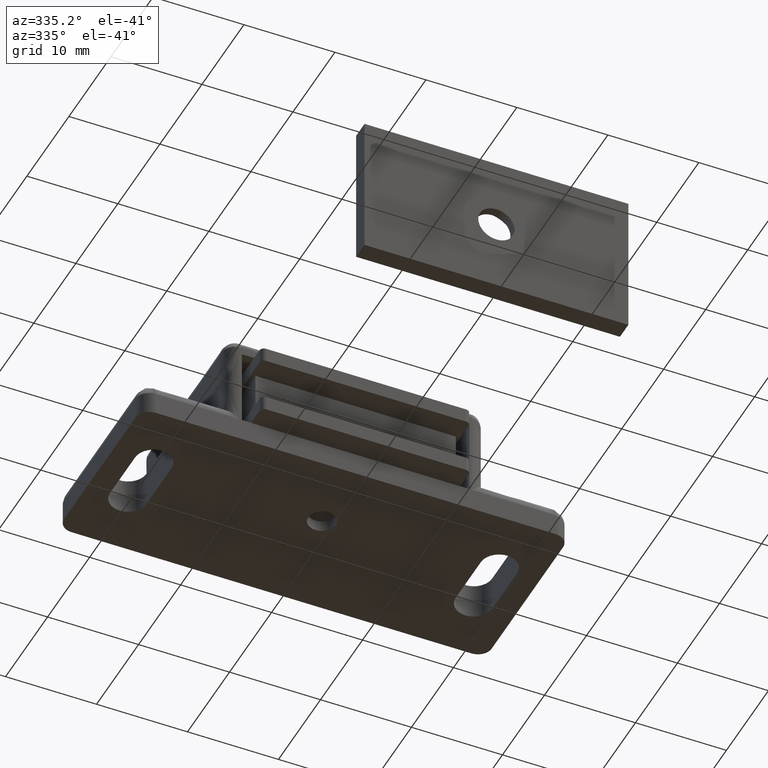
[diagram: clean part render]
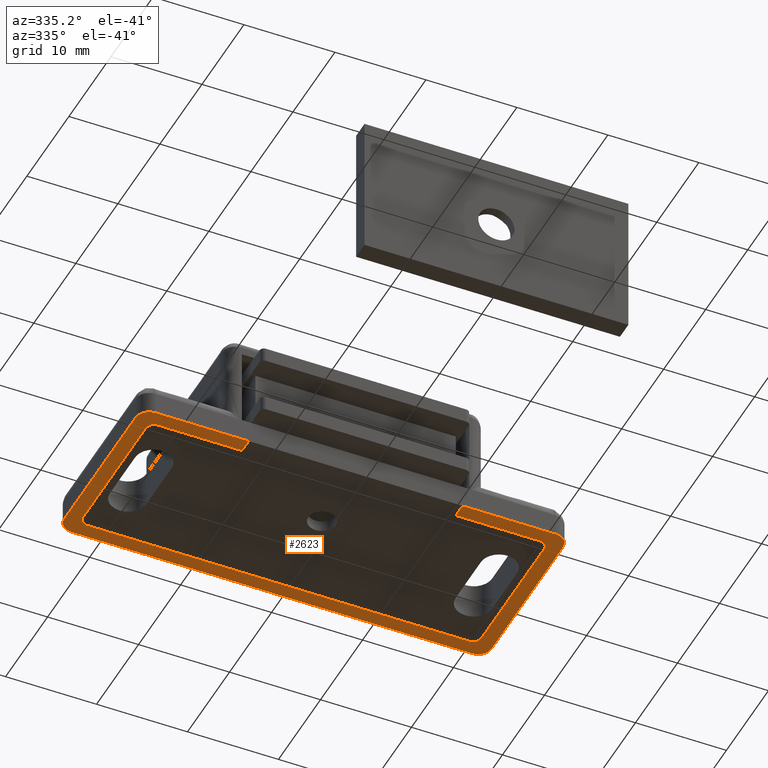
[diagram: same view with one face highlighted and labeled with its STEP entity id]
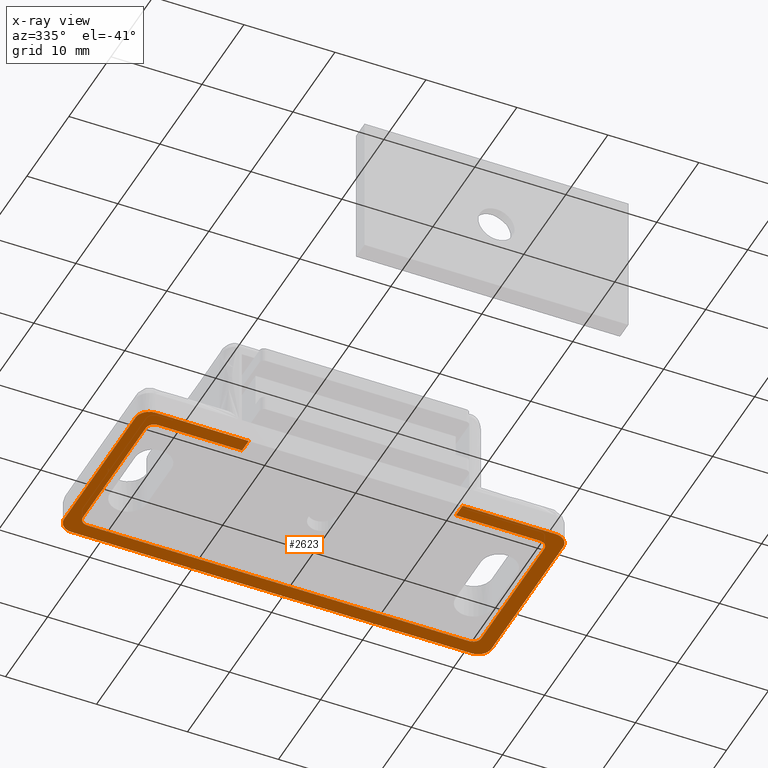
[diagram: x-ray of the same camera — body ghosted, the highlighted face saturated]
A machine part, auxiliary view. The second image highlights one B-rep face of the part: STEP entity #2623.
The next image is the same camera in x-ray: the body ghosted, the highlighted face saturated — about 0% of this face is hidden behind the body in this view.
In plain terms, the highlighted face is a freeform B-spline surface patch.
Its self-contained STEP definition (entity closure, byte-faithful):
#936=CARTESIAN_POINT('',(23.500000000000000,-1.500000000000000,0.0));
#937=VERTEX_POINT('',#936);
#943=CARTESIAN_POINT('',(22.0,0.0,0.0));
#944=VERTEX_POINT('',#943);
#945=CARTESIAN_POINT('',(22.0,0.0,0.0));
#946=CARTESIAN_POINT('',(23.500000000000004,0.0,0.0));
#947=CARTESIAN_POINT('',(23.500000000000000,-1.500000000000000,0.0));
#955=(BOUNDED_CURVE()B_SPLINE_CURVE(2,(#945,#946,#947),.UNSPECIFIED.,.F.,.U.)CURVE()GEOMETRIC_REPRESENTATION_ITEM()QUASI_UNIFORM_CURVE()RATIONAL_B_SPLINE_CURVE((1.0,0.707106781186548,1.0))REPRESENTATION_ITEM(''));
#956=EDGE_CURVE('',#944,#937,#955,.T.);
#1138=CARTESIAN_POINT('',(22.0,-20.0,0.0));
#1139=VERTEX_POINT('',#1138);
#1145=CARTESIAN_POINT('',(23.500000000000000,-18.500000000000000,0.0));
#1146=VERTEX_POINT('',#1145);
#1147=CARTESIAN_POINT('',(23.500000000000000,-18.500000000000000,0.0));
#1148=CARTESIAN_POINT('',(23.500000000000004,-19.999999999999996,0.0));
#1149=CARTESIAN_POINT('',(22.0,-20.0,0.0));
#1157=(BOUNDED_CURVE()B_SPLINE_CURVE(2,(#1147,#1148,#1149),.UNSPECIFIED.,.F.,.U.)CURVE()GEOMETRIC_REPRESENTATION_ITEM()QUASI_UNIFORM_CURVE()RATIONAL_B_SPLINE_CURVE((1.0,0.707106781186548,1.0))REPRESENTATION_ITEM(''));
#1158=EDGE_CURVE('',#1146,#1139,#1157,.T.);
#1199=CARTESIAN_POINT('',(-22.0,0.0,0.0));
#1200=VERTEX_POINT('',#1199);
#1206=CARTESIAN_POINT('',(-23.500000000000000,-1.500000000000000,0.0));
#1207=VERTEX_POINT('',#1206);
#1208=CARTESIAN_POINT('',(-23.500000000000000,-1.500000000000000,0.0));
#1209=CARTESIAN_POINT('',(-23.500000000000004,0.0,0.0));
#1210=CARTESIAN_POINT('',(-22.0,0.0,0.0));
#1218=(BOUNDED_CURVE()B_SPLINE_CURVE(2,(#1208,#1209,#1210),.UNSPECIFIED.,.F.,.U.)CURVE()GEOMETRIC_REPRESENTATION_ITEM()QUASI_UNIFORM_CURVE()RATIONAL_B_SPLINE_CURVE((1.0,0.707106781186548,1.0))REPRESENTATION_ITEM(''));
#1219=EDGE_CURVE('',#1207,#1200,#1218,.T.);
#1400=CARTESIAN_POINT('',(-22.0,-20.0,0.0));
#1401=VERTEX_POINT('',#1400);
#1402=CARTESIAN_POINT('',(-23.500000000000000,-18.500000000000000,0.0));
#1403=VERTEX_POINT('',#1402);
#1404=CARTESIAN_POINT('',(-22.0,-20.0,0.0));
#1405=CARTESIAN_POINT('',(-23.500000000000004,-19.999999999999996,0.0));
#1406=CARTESIAN_POINT('',(-23.500000000000000,-18.500000000000000,0.0));
#1414=(BOUNDED_CURVE()B_SPLINE_CURVE(2,(#1404,#1405,#1406),.UNSPECIFIED.,.F.,.U.)CURVE()GEOMETRIC_REPRESENTATION_ITEM()QUASI_UNIFORM_CURVE()RATIONAL_B_SPLINE_CURVE((1.0,0.707106781186548,1.0))REPRESENTATION_ITEM(''));
#1415=EDGE_CURVE('',#1401,#1403,#1414,.T.);
#2236=CARTESIAN_POINT('',(-11.750000000000000,-18.400001000000000,0.0));
#2237=VERTEX_POINT('',#2236);
#2238=CARTESIAN_POINT('',(-11.750000000000000,-20.0,0.0));
#2239=VERTEX_POINT('',#2238);
#2240=CARTESIAN_POINT('',(-11.750000000000000,-18.400001000000000,0.0));
#2241=CARTESIAN_POINT('',(-11.750000000000000,-20.0,0.0));
#2242=QUASI_UNIFORM_CURVE('',1,(#2240,#2241),.UNSPECIFIED.,.F.,.U.);
#2243=EDGE_CURVE('',#2237,#2239,#2242,.T.);
#2304=CARTESIAN_POINT('',(23.500000000000000,-18.500000000000000,0.0));
#2305=CARTESIAN_POINT('',(23.500000000000000,-1.500000000000000,0.0));
#2306=QUASI_UNIFORM_CURVE('',1,(#2304,#2305),.UNSPECIFIED.,.F.,.U.);
#2307=EDGE_CURVE('',#1146,#937,#2306,.T.);
#2322=CARTESIAN_POINT('',(-23.500000000000000,-1.500000000000000,0.0));
#2323=CARTESIAN_POINT('',(-23.500000000000000,-18.500000000000000,0.0));
#2324=QUASI_UNIFORM_CURVE('',1,(#2322,#2323),.UNSPECIFIED.,.F.,.U.);
#2325=EDGE_CURVE('',#1207,#1403,#2324,.T.);
#2338=CARTESIAN_POINT('',(22.0,0.0,0.0));
#2339=CARTESIAN_POINT('',(-22.0,0.0,0.0));
#2340=QUASI_UNIFORM_CURVE('',1,(#2338,#2339),.UNSPECIFIED.,.F.,.U.);
#2341=EDGE_CURVE('',#944,#1200,#2340,.T.);
#2496=CARTESIAN_POINT('',(-25.847649908904881,0.998999961236118,0.0));
#2497=CARTESIAN_POINT('',(25.847651169543120,0.998999961236118,0.0));
#2498=CARTESIAN_POINT('',(-25.847649908904881,-20.999000497677919,0.0));
#2499=CARTESIAN_POINT('',(25.847651169543120,-20.999000497677919,0.0));
#2500=B_SPLINE_SURFACE_WITH_KNOTS('',1,1,((#2496,#2498),(#2497,#2499)),.UNSPECIFIED.,.F.,.F.,.U.,(2,2),(2,2),(0.0,51.695301078447997),(0.0,21.998000458914039),.UNSPECIFIED.);
#2501=ORIENTED_EDGE('',*,*,#2341,.F.);
#2502=ORIENTED_EDGE('',*,*,#956,.T.);
#2503=ORIENTED_EDGE('',*,*,#2307,.F.);
#2504=ORIENTED_EDGE('',*,*,#1158,.T.);
#2505=CARTESIAN_POINT('',(11.750000000000000,-20.0,0.0));
#2506=VERTEX_POINT('',#2505);
#2507=CARTESIAN_POINT('',(11.750000000000000,-20.0,0.0));
#2508=CARTESIAN_POINT('',(22.0,-20.0,0.0));
#2509=QUASI_UNIFORM_CURVE('',1,(#2507,#2508),.UNSPECIFIED.,.F.,.U.);
#2510=EDGE_CURVE('',#2506,#1139,#2509,.T.);
#2511=ORIENTED_EDGE('',*,*,#2510,.F.);
#2512=CARTESIAN_POINT('',(11.750000000000000,-18.400001000000000,0.0));
#2513=VERTEX_POINT('',#2512);
#2514=CARTESIAN_POINT('',(11.750000000000000,-20.0,0.0));
#2515=CARTESIAN_POINT('',(11.750000000000000,-18.400001000000000,0.0));
#2516=QUASI_UNIFORM_CURVE('',1,(#2514,#2515),.UNSPECIFIED.,.F.,.U.);
#2517=EDGE_CURVE('',#2506,#2513,#2516,.T.);
#2518=ORIENTED_EDGE('',*,*,#2517,.T.);
#2519=CARTESIAN_POINT('',(21.0,-18.400001000000000,0.0));
#2520=VERTEX_POINT('',#2519);
#2521=CARTESIAN_POINT('',(11.750000000000000,-18.400001000000000,0.0));
#2522=CARTESIAN_POINT('',(21.0,-18.400001000000000,0.0));
#2523=QUASI_UNIFORM_CURVE('',1,(#2521,#2522),.UNSPECIFIED.,.F.,.U.);
#2524=EDGE_CURVE('',#2513,#2520,#2523,.T.);
#2525=ORIENTED_EDGE('',*,*,#2524,.T.);
#2526=CARTESIAN_POINT('',(21.899999999999999,-17.500000000000000,0.0));
#2527=VERTEX_POINT('',#2526);
#2528=CARTESIAN_POINT('',(21.899999999999999,-17.500000000000000,0.0));
#2529=CARTESIAN_POINT('',(21.900000000000002,-18.400000000000009,0.0));
#2530=CARTESIAN_POINT('',(21.0,-18.399999999999999,0.0));
#2538=(BOUNDED_CURVE()B_SPLINE_CURVE(2,(#2528,#2529,#2530),.UNSPECIFIED.,.F.,.U.)CURVE()GEOMETRIC_REPRESENTATION_ITEM()QUASI_UNIFORM_CURVE()RATIONAL_B_SPLINE_CURVE((1.0,0.707106781186547,1.0))REPRESENTATION_ITEM(''));
#2539=EDGE_CURVE('',#2527,#2520,#2538,.T.);
#2540=ORIENTED_EDGE('',*,*,#2539,.F.);
#2541=CARTESIAN_POINT('',(21.900001000000000,-2.500000000000000,0.0));
#2542=VERTEX_POINT('',#2541);
#2543=CARTESIAN_POINT('',(21.899999999999999,-17.500000000000000,0.0));
#2544=CARTESIAN_POINT('',(21.900001000000000,-2.500000000000000,0.0));
#2545=QUASI_UNIFORM_CURVE('',1,(#2543,#2544),.UNSPECIFIED.,.F.,.U.);
#2546=EDGE_CURVE('',#2527,#2542,#2545,.T.);
#2547=ORIENTED_EDGE('',*,*,#2546,.T.);
#2548=CARTESIAN_POINT('',(21.000000172787601,-1.600000000000000,0.0));
#2549=VERTEX_POINT('',#2548);
#2550=CARTESIAN_POINT('',(21.000000172787601,-1.600000000000017,0.0));
#2551=CARTESIAN_POINT('',(21.899999999999999,-1.600000172787583,0.0));
#2552=CARTESIAN_POINT('',(21.899999999999999,-2.500000000000000,0.0));
#2560=(BOUNDED_CURVE()B_SPLINE_CURVE(2,(#2550,#2551,#2552),.UNSPECIFIED.,.F.,.U.)CURVE()GEOMETRIC_REPRESENTATION_ITEM()QUASI_UNIFORM_CURVE()RATIONAL_B_SPLINE_CURVE((1.0,0.707106849063924,1.0))REPRESENTATION_ITEM(''));
#2561=EDGE_CURVE('',#2549,#2542,#2560,.T.);
#2562=ORIENTED_EDGE('',*,*,#2561,.F.);
#2563=CARTESIAN_POINT('',(-21.0,-1.599998000000000,0.0));
#2564=VERTEX_POINT('',#2563);
#2565=CARTESIAN_POINT('',(21.000000172787601,-1.600000000000000,0.0));
#2566=CARTESIAN_POINT('',(-21.0,-1.599998000000000,0.0));
#2567=QUASI_UNIFORM_CURVE('',1,(#2565,#2566),.UNSPECIFIED.,.F.,.U.);
#2568=EDGE_CURVE('',#2549,#2564,#2567,.T.);
#2569=ORIENTED_EDGE('',*,*,#2568,.T.);
#2570=CARTESIAN_POINT('',(-21.899999999999999,-2.499999654424810,0.0));
#2571=VERTEX_POINT('',#2570);
#2572=CARTESIAN_POINT('',(-21.899999999999999,-2.499999654424810,0.0));
#2573=CARTESIAN_POINT('',(-21.899999654424914,-1.599999000000000,0.0));
#2574=CARTESIAN_POINT('',(-21.0,-1.599998000000000,0.0));
#2582=(BOUNDED_CURVE()B_SPLINE_CURVE(2,(#2572,#2573,#2574),.UNSPECIFIED.,.F.,.U.)CURVE()GEOMETRIC_REPRESENTATION_ITEM()QUASI_UNIFORM_CURVE()RATIONAL_B_SPLINE_CURVE((1.0,0.707106916941290,1.0))REPRESENTATION_ITEM(''));
#2583=EDGE_CURVE('',#2571,#2564,#2582,.T.);
#2584=ORIENTED_EDGE('',*,*,#2583,.F.);
#2585=CARTESIAN_POINT('',(-21.899999999999999,-17.500000000000000,0.0));
#2586=VERTEX_POINT('',#2585);
#2587=CARTESIAN_POINT('',(-21.899999999999999,-2.499999654424810,0.0));
#2588=CARTESIAN_POINT('',(-21.899999999999999,-17.500000000000000,0.0));
#2589=QUASI_UNIFORM_CURVE('',1,(#2587,#2588),.UNSPECIFIED.,.F.,.U.);
#2590=EDGE_CURVE('',#2571,#2586,#2589,.T.);
#2591=ORIENTED_EDGE('',*,*,#2590,.T.);
#2592=CARTESIAN_POINT('',(-21.0,-18.400001000000000,0.0));
#2593=VERTEX_POINT('',#2592);
#2594=CARTESIAN_POINT('',(-21.0,-18.400001000000000,0.0));
#2595=CARTESIAN_POINT('',(-21.900000000000002,-18.400000000000009,0.0));
#2596=CARTESIAN_POINT('',(-21.899999999999999,-17.500000000000000,0.0));
#2604=(BOUNDED_CURVE()B_SPLINE_CURVE(2,(#2594,#2595,#2596),.UNSPECIFIED.,.F.,.U.)CURVE()GEOMETRIC_REPRESENTATION_ITEM()QUASI_UNIFORM_CURVE()RATIONAL_B_SPLINE_CURVE((1.0,0.707106781186547,1.0))REPRESENTATION_ITEM(''));
#2605=EDGE_CURVE('',#2593,#2586,#2604,.T.);
#2606=ORIENTED_EDGE('',*,*,#2605,.F.);
#2607=CARTESIAN_POINT('',(-21.0,-18.400001000000000,0.0));
#2608=CARTESIAN_POINT('',(-11.750000000000000,-18.400001000000000,0.0));
#2609=QUASI_UNIFORM_CURVE('',1,(#2607,#2608),.UNSPECIFIED.,.F.,.U.);
#2610=EDGE_CURVE('',#2593,#2237,#2609,.T.);
#2611=ORIENTED_EDGE('',*,*,#2610,.T.);
#2612=ORIENTED_EDGE('',*,*,#2243,.T.);
#2613=CARTESIAN_POINT('',(-22.0,-20.0,0.0));
#2614=CARTESIAN_POINT('',(-11.750000000000000,-20.0,0.0));
#2615=QUASI_UNIFORM_CURVE('',1,(#2613,#2614),.UNSPECIFIED.,.F.,.U.);
#2616=EDGE_CURVE('',#1401,#2239,#2615,.T.);
#2617=ORIENTED_EDGE('',*,*,#2616,.F.);
#2618=ORIENTED_EDGE('',*,*,#1415,.T.);
#2619=ORIENTED_EDGE('',*,*,#2325,.F.);
#2620=ORIENTED_EDGE('',*,*,#1219,.T.);
#2621=EDGE_LOOP('',(#2501,#2502,#2503,#2504,#2511,#2518,#2525,#2540,#2547,#2562,#2569,#2584,#2591,#2606,#2611,#2612,#2617,#2618,#2619,#2620));
#2622=FACE_OUTER_BOUND('',#2621,.T.);
#2623=ADVANCED_FACE('',(#2622),#2500,.T.);